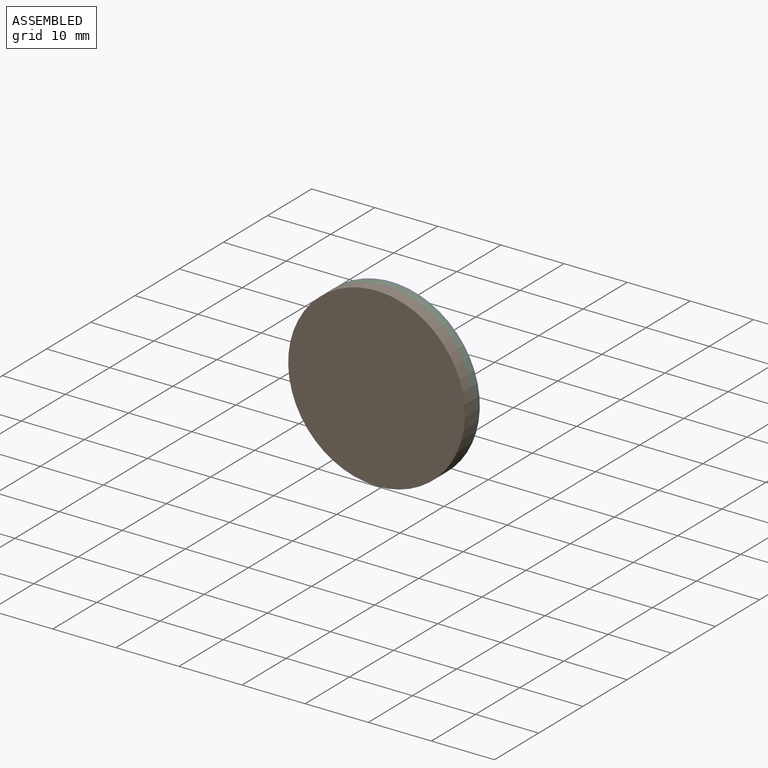
[diagram: assembled view]
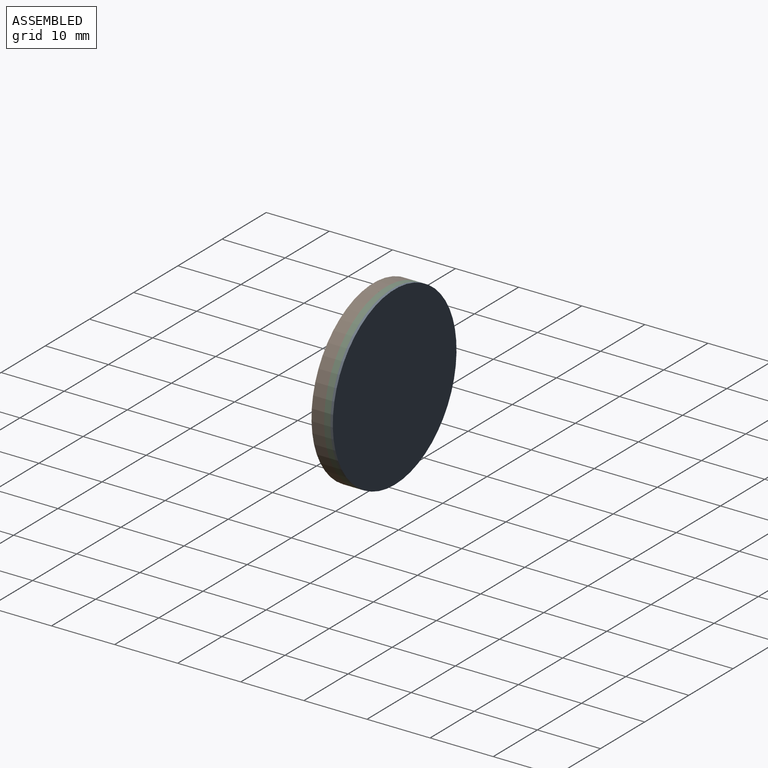
[diagram: assembled view, second angle]
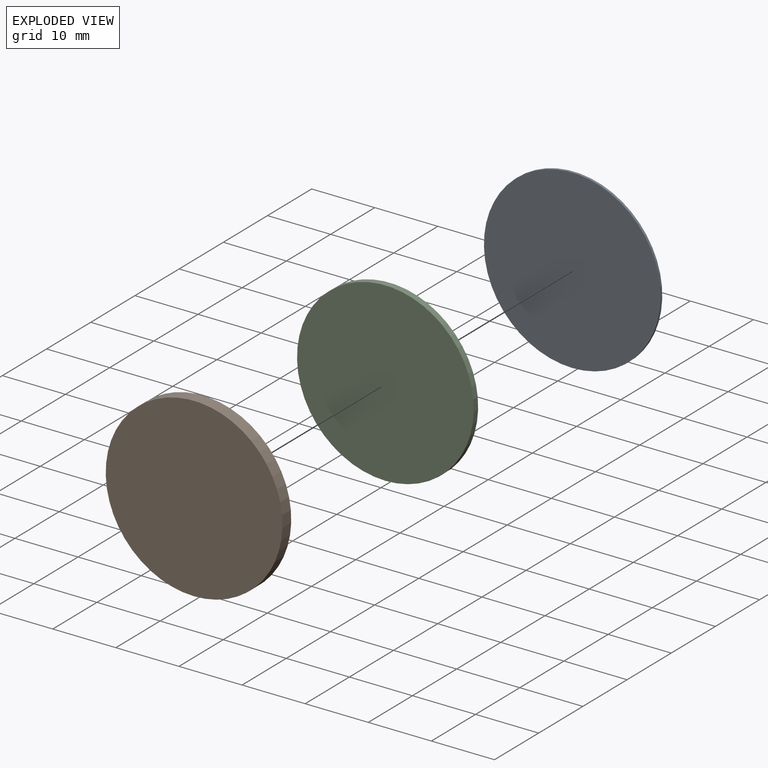
[diagram: exploded view]
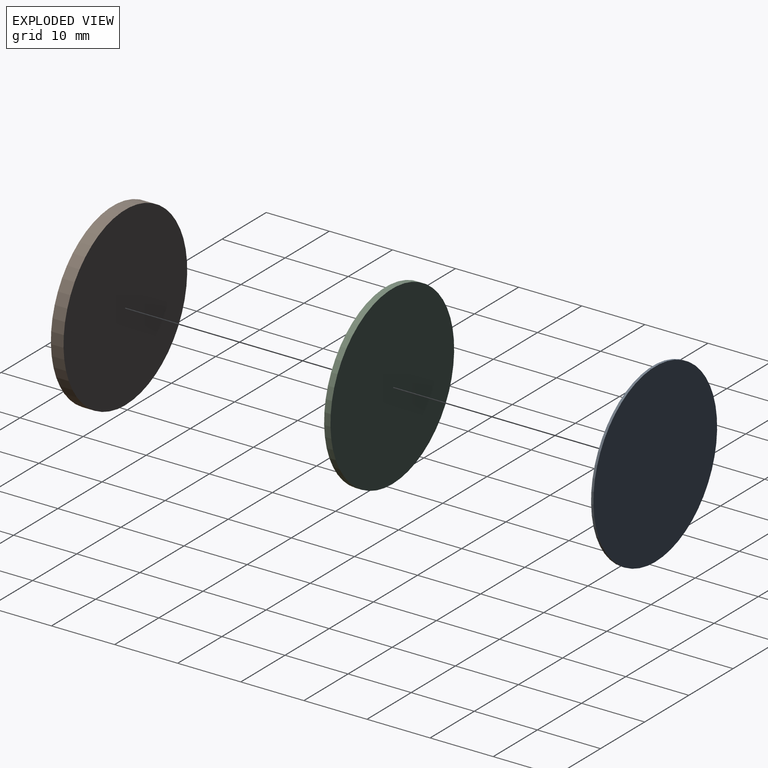
[diagram: exploded view, second angle]
ASSEMBLY  parts=3 mates=2
PART A: 3 faces, bbox 28x0.4x28 mm
  f0: plane 28x28mm, normal (0,-1,0), area 615.8mm2, adj f2
  f1: plane 28x28mm, normal (0,1,0), area 615.8mm2, adj f2
  f2: cylinder r=14mm len=28mm, axis (0,-1,0), area 33mm2, adj f0,f1
PART B: 3 faces, bbox 28x2x28 mm
  f0: plane 28x28mm, normal (0,-1,0), area 615.8mm2, adj f2
  f1: plane 28x28mm, normal (0,1,0), area 615.8mm2, adj f2
  f2: cylinder r=14mm len=28mm, axis (0,-1,0), area 175.9mm2, adj f0,f1
PART C: 3 faces, bbox 28x1x28 mm
  f0: plane 28x28mm, normal (0,-1,0), area 615.8mm2, adj f2
  f1: plane 28x28mm, normal (0,1,0), area 615.8mm2, adj f2
  f2: cylinder r=14mm len=28mm, axis (0,-1,0), area 88mm2, adj f0,f1
PLACE A t=(0,2,7.5)mm
PLACE B t=(0,-1,7.5)mm
PLACE C t=(0,1,7.5)mm
MATE fastened A.f2 <-> C.f2  axis (0,-1,0) through (0,2,7.5)mm
MATE fastened C.f2 <-> B.f2  axis (0,-1,0) through (0,1,7.5)mm
